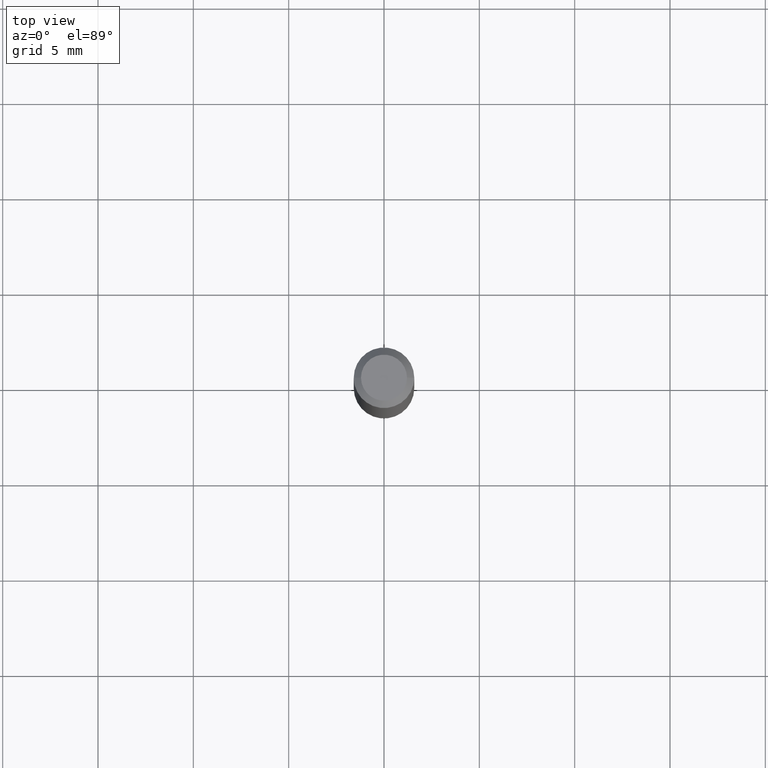
[diagram: clean part render]
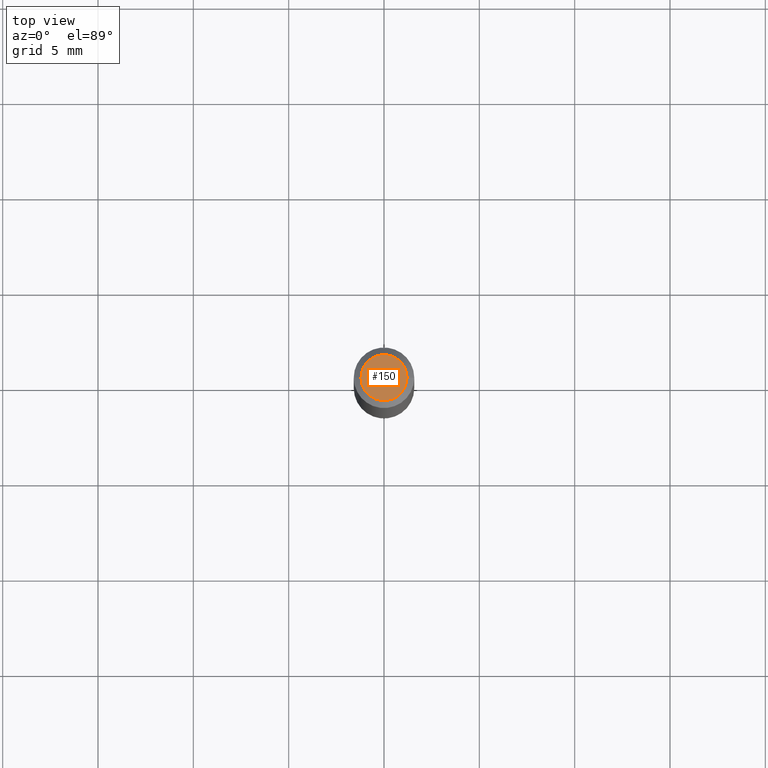
[diagram: same view with one face highlighted and labeled with its STEP entity id]
A machine part, top view. The second image highlights one B-rep face of the part: STEP entity #150.
In plain terms, the highlighted planar face has unit normal (0, -0, -1).
Its self-contained STEP definition (entity closure, byte-faithful):
#3 = DIRECTION ( 'NONE',  ( -1.000000000000000000, 6.982962677686265922E-15, -4.876176775795935793E-29 ) ) ;
#25 = CARTESIAN_POINT ( 'NONE',  ( 3.316907271900976096E-16, 0.04749999999999999362, -2.863946871395908498E-16 ) ) ;
#43 = DIRECTION ( 'NONE',  ( 1.000000000000000000, -6.982962677686267499E-15, 4.852736867747366768E-29 ) ) ;
#53 = CARTESIAN_POINT ( 'NONE',  ( -0.04749999999999999362, 3.578768372314206562E-16, -2.410986470890852239E-16 ) ) ;
#66 = PLANE ( 'NONE',  #335 ) ;
#75 = DIRECTION ( 'NONE',  ( -2.445468806185136597E-29, 3.491481338843145583E-15, 1.000000000000000000 ) ) ;
#116 = CARTESIAN_POINT ( 'NONE',  ( 0.04749999999999999362, -4.035134999187582567E-16, -2.410986470890802443E-16 ) ) ;
#150 = ADVANCED_FACE ( 'NONE', ( #252 ), #66, .F. ) ;
#166 = EDGE_CURVE ( 'NONE', #255, #415, #232, .T. ) ;
#188 = ORIENTED_EDGE ( 'NONE', *, *, #369, .T. ) ;
#232 = CIRCLE ( 'NONE', #238, 0.04749999999999999362 ) ;
#238 = AXIS2_PLACEMENT_3D ( 'NONE', #368, #75, #43 ) ;
#252 = FACE_OUTER_BOUND ( 'NONE', #358, .T. ) ;
#255 = VERTEX_POINT ( 'NONE', #116 ) ;
#279 = CIRCLE ( 'NONE', #336, 0.04749999999999999362 ) ;
#283 = ORIENTED_EDGE ( 'NONE', *, *, #166, .T. ) ;
#314 = DIRECTION ( 'NONE',  ( 1.000000000000000000, -6.982962677686267499E-15, 4.852736867747366768E-29 ) ) ;
#335 = AXIS2_PLACEMENT_3D ( 'NONE', #25, #438, #3 ) ;
#336 = AXIS2_PLACEMENT_3D ( 'NONE', #418, #412, #314 ) ;
#358 = EDGE_LOOP ( 'NONE', ( #188, #283 ) ) ;
#368 = CARTESIAN_POINT ( 'NONE',  ( 5.895992206697910099E-45, -8.417914271318620386E-31, -2.410986470890828574E-16 ) ) ;
#369 = EDGE_CURVE ( 'NONE', #415, #255, #279, .T. ) ;
#412 = DIRECTION ( 'NONE',  ( -2.445468806185136597E-29, 3.491481338843145583E-15, 1.000000000000000000 ) ) ;
#415 = VERTEX_POINT ( 'NONE', #53 ) ;
#418 = CARTESIAN_POINT ( 'NONE',  ( 5.895992206697910099E-45, -8.417914271318620386E-31, -2.410986470890828574E-16 ) ) ;
#438 = DIRECTION ( 'NONE',  ( 2.438088387897960049E-29, -3.491481338843145188E-15, -1.000000000000000000 ) ) ;